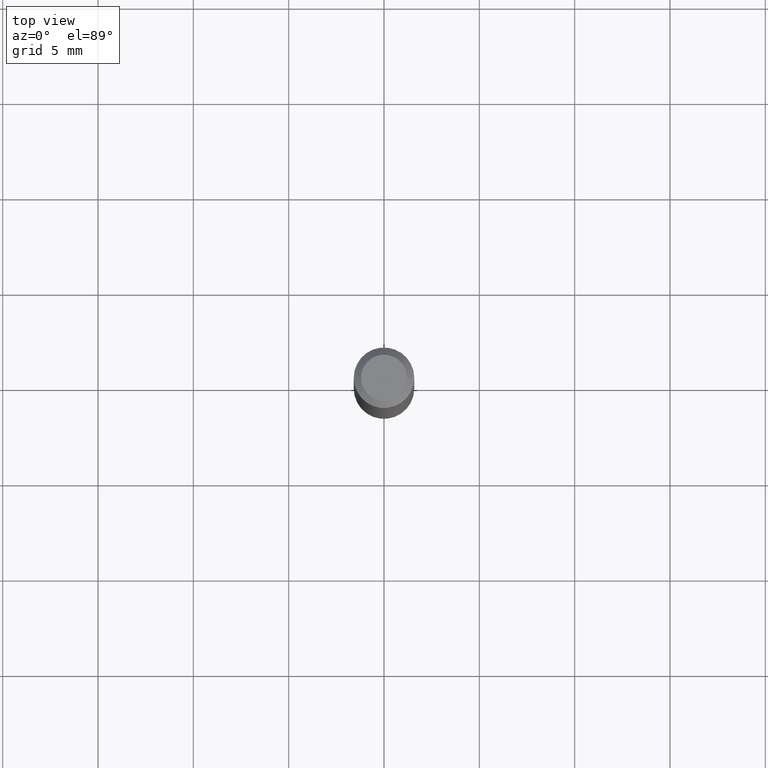
[diagram: clean part render]
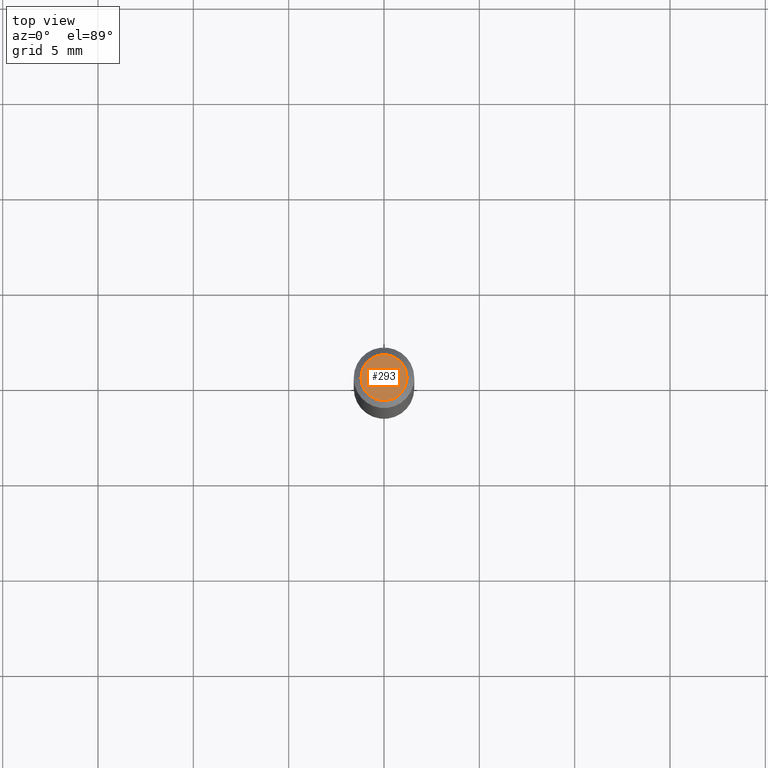
[diagram: same view with one face highlighted and labeled with its STEP entity id]
A machine part, top view. The second image highlights one B-rep face of the part: STEP entity #293.
In plain terms, the highlighted planar face has unit normal (0, -0, -1).
Its self-contained STEP definition (entity closure, byte-faithful):
#13 = ORIENTED_EDGE ( 'NONE', *, *, #83, .T. ) ;
#49 = EDGE_CURVE ( 'NONE', #360, #342, #181, .T. ) ;
#64 = PLANE ( 'NONE',  #464 ) ;
#79 = DIRECTION ( 'NONE',  ( -2.445468806185136597E-29, 3.491481338843145583E-15, 1.000000000000000000 ) ) ;
#83 = EDGE_CURVE ( 'NONE', #342, #360, #402, .T. ) ;
#93 = AXIS2_PLACEMENT_3D ( 'NONE', #233, #79, #441 ) ;
#144 = EDGE_LOOP ( 'NONE', ( #431, #13 ) ) ;
#148 = DIRECTION ( 'NONE',  ( -1.000000000000000000, 6.982962677686265922E-15, -4.876176775795935793E-29 ) ) ;
#164 = CARTESIAN_POINT ( 'NONE',  ( 0.04749999999999999362, -4.035134999187577144E-16, 8.673617379885194112E-17 ) ) ;
#181 = CIRCLE ( 'NONE', #93, 0.04749999999999999362 ) ;
#190 = AXIS2_PLACEMENT_3D ( 'NONE', #461, #388, #279 ) ;
#220 = CARTESIAN_POINT ( 'NONE',  ( -0.04749999999999999362, 3.578768372314211985E-16, 8.673617379884694910E-17 ) ) ;
#232 = DIRECTION ( 'NONE',  ( 2.438088387897960049E-29, -3.491481338843145188E-15, -1.000000000000000000 ) ) ;
#233 = CARTESIAN_POINT ( 'NONE',  ( -2.121106073929386760E-45, 3.028377322213383622E-31, 8.673617379884936499E-17 ) ) ;
#266 = FACE_OUTER_BOUND ( 'NONE', #144, .T. ) ;
#279 = DIRECTION ( 'NONE',  ( 1.000000000000000000, -6.982962677686267499E-15, 4.884662768193073002E-29 ) ) ;
#293 = ADVANCED_FACE ( 'NONE', ( #266 ), #64, .F. ) ;
#342 = VERTEX_POINT ( 'NONE', #164 ) ;
#360 = VERTEX_POINT ( 'NONE', #220 ) ;
#388 = DIRECTION ( 'NONE',  ( -2.445468806185136597E-29, 3.491481338843145583E-15, 1.000000000000000000 ) ) ;
#402 = CIRCLE ( 'NONE', #190, 0.04749999999999999362 ) ;
#431 = ORIENTED_EDGE ( 'NONE', *, *, #49, .T. ) ;
#441 = DIRECTION ( 'NONE',  ( 1.000000000000000000, -6.982962677686267499E-15, 4.884662768193073002E-29 ) ) ;
#457 = CARTESIAN_POINT ( 'NONE',  ( 3.316907271900976096E-16, 0.04749999999999999362, -1.224772766956247324E-16 ) ) ;
#461 = CARTESIAN_POINT ( 'NONE',  ( -2.121106073929386760E-45, 3.028377322213383622E-31, 8.673617379884936499E-17 ) ) ;
#464 = AXIS2_PLACEMENT_3D ( 'NONE', #457, #232, #148 ) ;